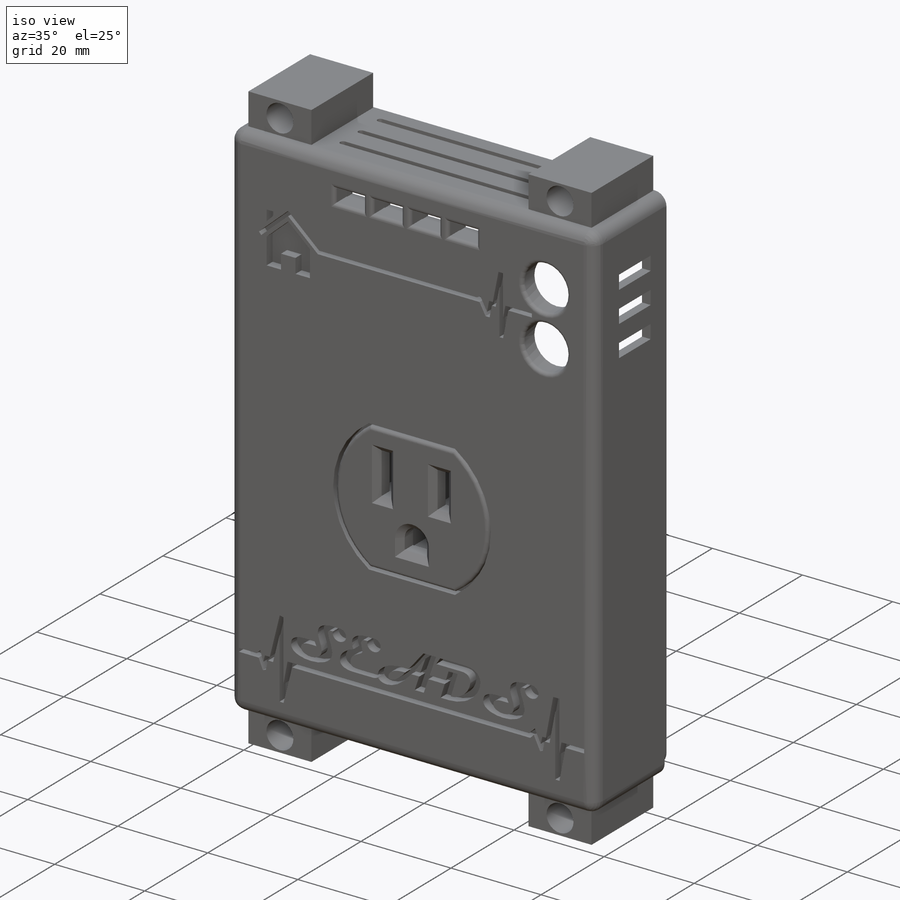
[diagram: iso view]
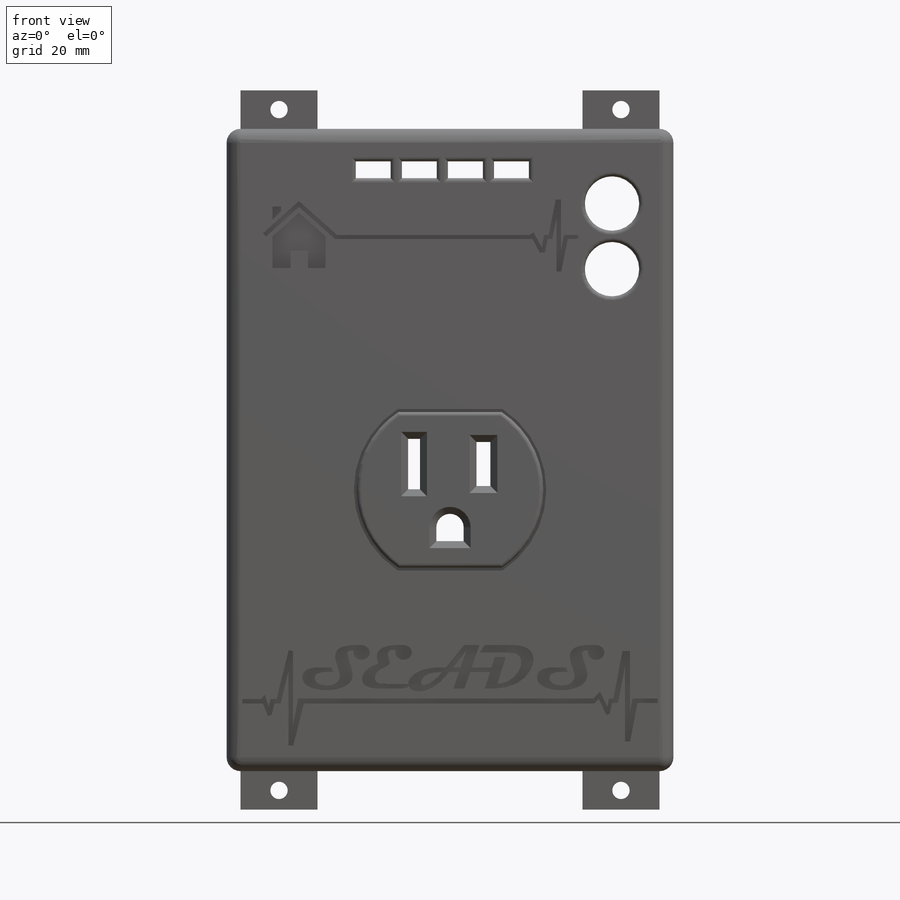
[diagram: front view]
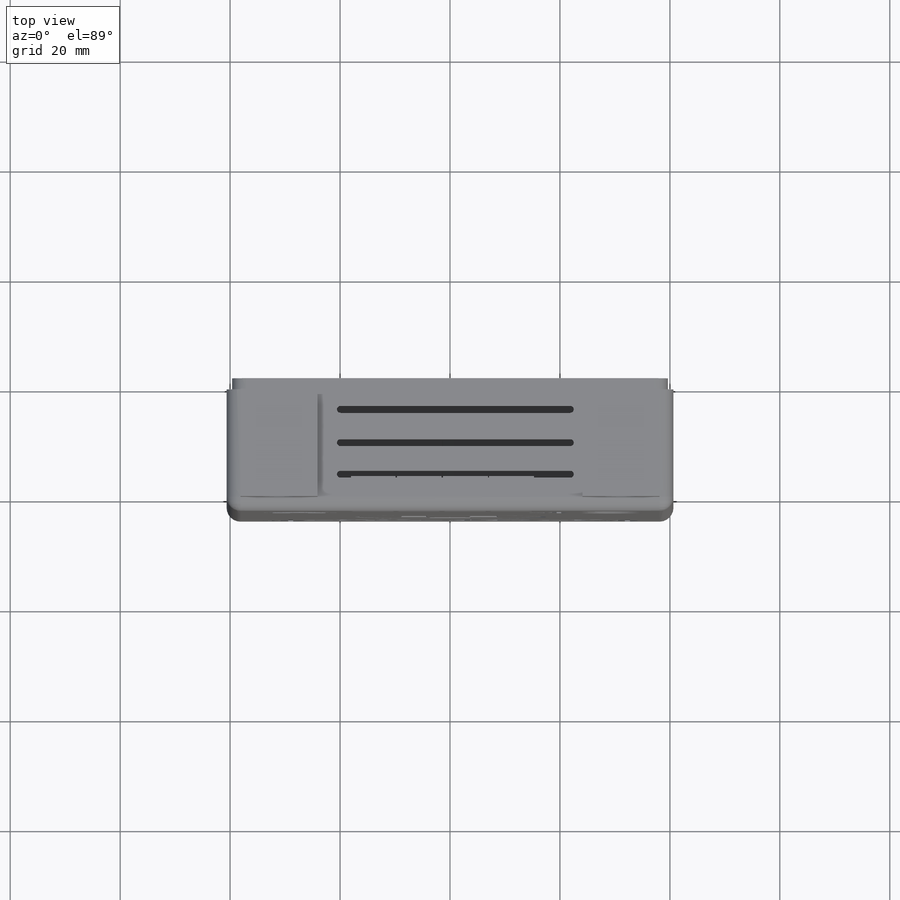
[diagram: top view]
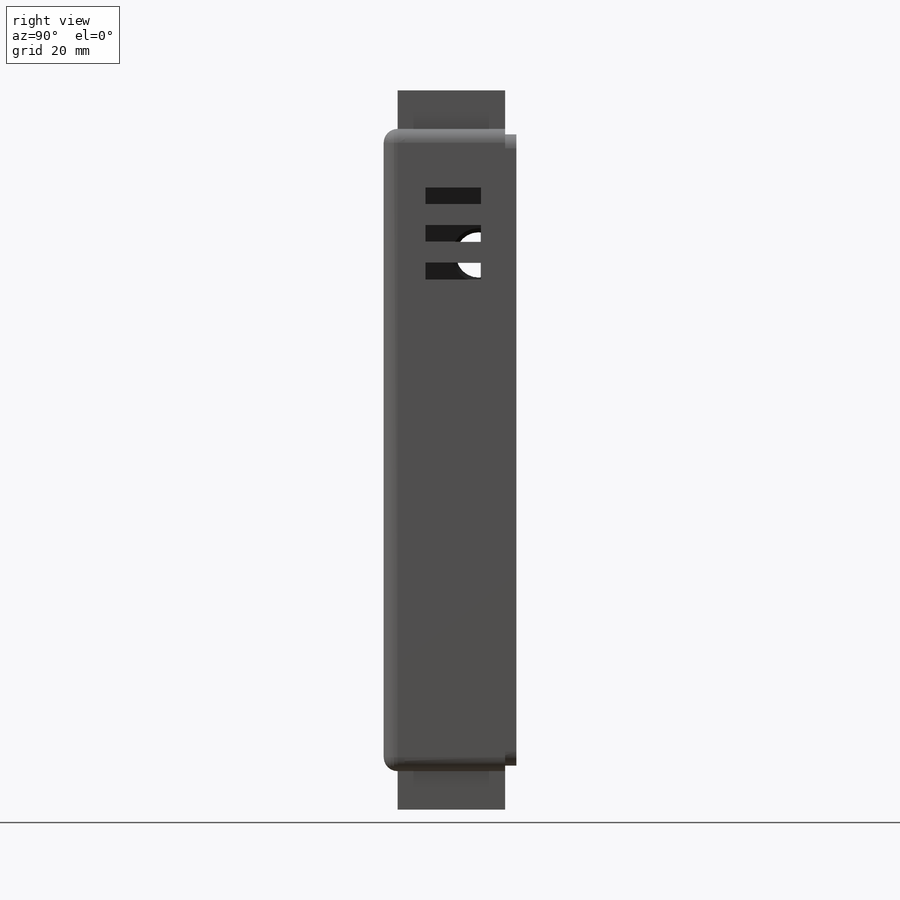
[diagram: right view]
SOLIDWORKS PART (.sldprt)
format: sldprt  version: not decoded by parser v0  size: 1,329,664 bytes
history: native  units: mm
features: sketch x22, cut_extrude x15, fillet x12, extrude x7, plane x5, chamfer x3, material x1 (+12 scaffold rows collapsed)
feature tree (77):
  scaffold x12  (default folders/planes/origin — collapsed)
  material  "Material <not specified>"
  sketch  "Sketch1"  dims[D1=81.28mm D2=116.84mm D3=10.16mm D4=10.16mm]
  sketch  "Sketch4"  dims[c1.D1=5.08mm c1.D2=1.397mm c2.D1=~5.015488mm c2.D2=1.905mm c3.D1=~4.722614mm c3.D2=1.905mm c4.D1=~7.705187mm c4.D2=1.905mm c5.D1=~4.722614mm c5.D2=1.905mm]
  sketch  "Sketch5"  dims[c1.D1=5.08mm c1.D3=3.556mm c1.D4=3.556mm c1.D6=3.556mm c1.D7=3.556mm c1.D8=3.556mm c1.D2=2.921mm c2.D3=10.795mm c2.D4=10.795mm c2.D5=38.1mm c2.D6=2.54mm c2.D7=3.175mm c2.D8=3.175mm]
  extrude  "Case Extrude"  Depth=20.32mm
  cut_extrude  "Case Cut"  Depth=25.4mm
  extrude  "DaughterBoard Extrude"  Depth=9.525mm
  sketch  "Sketch6"  dims[D1=1.905mm]
  cut_extrude  "DaughterBoard Holes"  Depth=9.525mm
  sketch  "Sketch8"  dims[D1=1.905mm]
  cut_extrude  "Cut-Extrude6"  [1 undecoded]
  fillet  "Fillet2"  Radius=2.54mm
  fillet  "Fillet3"  Radius=2.54mm
  fillet  "Fillet4"  Radius=2.54mm
  fillet  "Fillet5"  Radius=2.54mm
  plane  "Left Side Plane"  Offset=0mm
  sketch  "Sketch11"  dims[c1.D1=5.08mm c1.D4=2.54mm c2.D1=2.54mm c2.D7=~6.757905mm c2.D6=8.255mm c2.D2=6.985mm c2.D3=11.176mm c2.D4=11.684mm c2.D5=11.684mm c3.D3=22.86mm c3.D4=5.08mm c3.D1=5.588mm c4.D4=11.43mm c4.D6=~4.255885mm c4.D7=40.005mm c4.D8=18.161mm c4.D9=6.1468mm c4.D2=4.3mm]
  cut_extrude  "Cut-Extrude7"  Depth=2.032mm
  chamfer  "Chamfer1"  Distance=0.635mm Angle=45deg
  chamfer  "Chamfer2"  Distance=0.762mm Angle=45deg
  plane  "Plane1"  Offset=0mm
  sketch  "Sketch12"  dims[c1.D1=81.28mm c1.D2=116.84mm c1.D3=10.16mm c1.D4=10.16mm c2.D1=1.016mm]
  cut_extrude  "Cut-Extrude9"  Depth=2.032mm
  fillet  "Fillet7"  Radius=2.54mm
  fillet  "Fillet8"  Radius=2.54mm
  fillet  "Fillet9"  Radius=2.54mm
  fillet  "Fillet10"  Radius=2.54mm
  plane  "Plane2"  Offset=0mm
  sketch  "Sketch13"  dims[D1=~0.913761mm]
  cut_extrude  "Cut-Extrude10"  [1 undecoded]
  sketch  "Sketch25"  dims[D1=8.128mm D2=3.048mm D3=3.81mm]
  plane  "Plane3"  Offset=0mm
  sketch  "Sketch14"  dims[D1=81.28mm D2=116.84mm D3=10.16mm D4=10.16mm]
  extrude  "Boss-Extrude1"  Depth=3.81mm
  sketch  "Sketch15"  dims[c1.D3=9.906mm c1.D8=9.0424mm c1.D5=9.0424mm c1.D1=6.35mm c1.D2=3.048mm c1.D4=11.938mm c2.D5=0.9525mm c2.D6=9.144mm c2.D7=0.9525mm c2.D8=6.858mm c2.D9=3.81mm c2.D10=29.972mm c2.D11=8.382mm c2.D12=8.382mm c2.D13=8.382mm c2.D14=3.556mm c3.D8=6.858mm c3.D10=29.972mm c3.D9=3.81mm c4.D10=113.2078mm c4.D7=~30.15752mm c4.D5=11.684mm c4.D6=~5.540466mm c5.D7=9.271mm c5.D8=24.765mm c5.D9=26.924mm]
  cut_extrude  "Cut-Extrude11"  [1 undecoded]
  sketch  "Sketch16"  dims[c1.D6=4.9784mm c1.D1=2.54mm c1.D2=2.159mm c1.D3=8.001mm c1.D4=9.1694mm c1.D5=12.6238mm c1.D7=17.9832mm c2.D5=12.6238mm c2.D8=37.338mm c2.D9=31.115mm]
  cut_extrude  "Cut-Extrude12"  [1 undecoded]
  sketch  "Sketch18"  dims[c1.D1=1.27mm c1.D2=1.27mm c1.D3=1.27mm c1.D4=1.016mm c1.D5=1.016mm c1.D6=1.016mm c1.D7=1.016mm c2.D4=1.016mm c2.D5=1.016mm]
  extrude  "Boss-Extrude2"  Depth=10.16mm
  plane  "Plane4"  Offset=0mm
  sketch  "Sketch19"  dims[c1.D3=9.906mm c1.D8=9.0424mm c1.D5=9.0424mm c1.D1=6.35mm c1.D2=3.048mm c1.D4=11.938mm c2.D5=0.9525mm c2.D6=9.144mm c2.D7=0.9525mm c2.D8=6.858mm c2.D9=3.81mm c2.D10=29.972mm c2.D11=8.382mm c2.D12=8.382mm c2.D13=8.382mm c2.D14=3.556mm c3.D8=6.858mm c3.D10=29.972mm c3.D9=3.81mm c4.D10=113.2078mm c4.D7=~30.15752mm c4.D5=11.684mm c4.D6=~5.540466mm c5.D7=9.271mm c5.D8=24.765mm c5.D9=26.924mm c5.D5=0.508mm c6.D9=0.381mm]
  extrude  "Boss-Extrude3"  Depth=2.54mm
  fillet  "Fillet11"  Radius=2.54mm
  fillet  "Fillet12"  Radius=0.762mm
  chamfer  "Chamfer3"  Distance=1.27mm Angle=45deg
  sketch  "Sketch20"  dims[c1.D1=~23.845178mm c2.D1=0.508mm c2.D2=28.321mm c2.D3=0.508mm c2.D4=0.508mm c2.D5=18.796mm c2.D6=~36.961593mm]
  cut_extrude  "Cut-Extrude13"  Depth=1.905mm
  fillet  "Fillet13"  Radius=0.762mm
  fillet  "Fillet14"  Radius=2.54mm
  sketch  "Sketch21"  dims[c1.D1=0.508mm c1.D2=0.508mm c1.D3=0.508mm c1.D4=0.508mm c1.D5=0.508mm c1.D6=0.508mm c1.D7=0.508mm c1.D8=0.508mm c1.D9=0.508mm c1.D10=0.508mm c1.D11=0.508mm c1.D12=0.508mm c1.D13=0.508mm c1.D14=~31.534652mm c1.D15=~31.069977mm c2.D1=0.508mm c2.D2=0.508mm c2.D3=0.508mm c2.D4=0.508mm c2.D5=0.508mm c2.D6=0.508mm c2.D7=0.508mm c2.D8=0.508mm c2.D9=0.508mm c2.D10=0.508mm c2.D11=0.508mm c2.D12=0.508mm c2.D13=0.508mm c3.D1=0.508mm c3.D2=0.508mm c3.D3=0.508mm c3.D4=0.508mm c3.D5=0.508mm c3.D6=0.508mm c3.D7=0.508mm c3.D8=0.508mm c3.D9=0.508mm c3.D10=0.508mm c3.D11=0.508mm c3.D12=0.508mm c3.D13=0.508mm c3.D14=~34.918367mm c3.D15=~35.383042mm c3.D16=~0.680683mm c3.D17=~62.040397mm c3.D18=~62.312169mm c3.D19=~62.620577mm c3.D20=~63.479843mm c3.D21=~63.593669mm c3.D22=~64.058107mm c3.D23=~64.319636mm c3.D24=~64.447977mm c3.D25=~64.863175mm c3.D26=~65.335704mm c3.D27=~65.447026mm c3.D28=~66.300642mm c3.D29=~104.326373mm c3.D30=~105.18018mm c3.D31=~105.614071mm c3.D32=~105.905877mm c3.D33=~106.122071mm c3.D34=~106.413877mm c3.D35=~106.784175mm c3.D36=~108.488788mm c3.D37=~110.492985mm c3.D38=122.7582mm c4.D29=~5.542694mm c4.D14=~5.606078mm c4.D15=~2.051811mm c4.D30=~3.700888mm c4.D1=~0.79756mm]
  cut_extrude  "Cut-Extrude14"  Depth=1.905mm
  sketch  "Sketch22"
  cut_extrude  "Cut-Extrude15"  Depth=1.905mm
  sketch  "Sketch24"
  cut_extrude  "Cut-Extrude16"  Depth=1.905mm
  cut_extrude  "Cut-Extrude17"  [1 undecoded]
  sketch  "Sketch26"  dims[D1=14.0mm]
  sketch  "Sketch27"  dims[D1=14.0mm]
  extrude  "Boss-Extrude4"  Depth=7mm
  extrude  "Boss-Extrude5"  Depth=7mm
  sketch  "Sketch28"  dims[D1=3.15mm]
  cut_extrude  "Cut-Extrude18"  [1 undecoded]
  sketch  "Sketch31"  dims[D1=6.0mm]
  cut_extrude  "Cut-Extrude19"  Depth=8mm
decode coverage: 51 of 59 modeling features carry decoded parameters
note: ~ marks probable driven/reference dimensions
note: 6 parameter values undecoded
summary: no parameter record found for 6 features
note: suppression state not decoded; provenance and decode notes live in map.json
